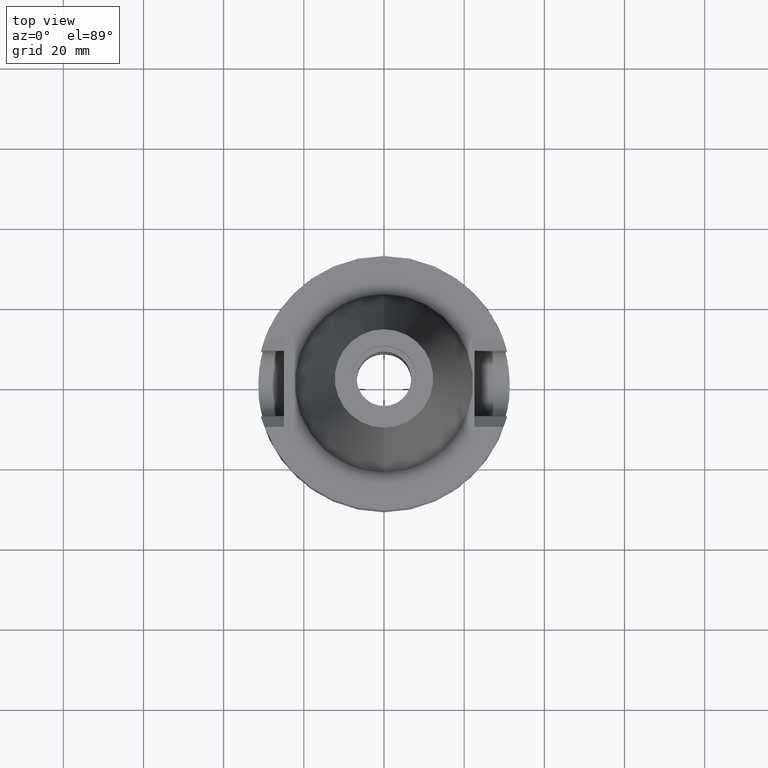
[diagram: clean part render]
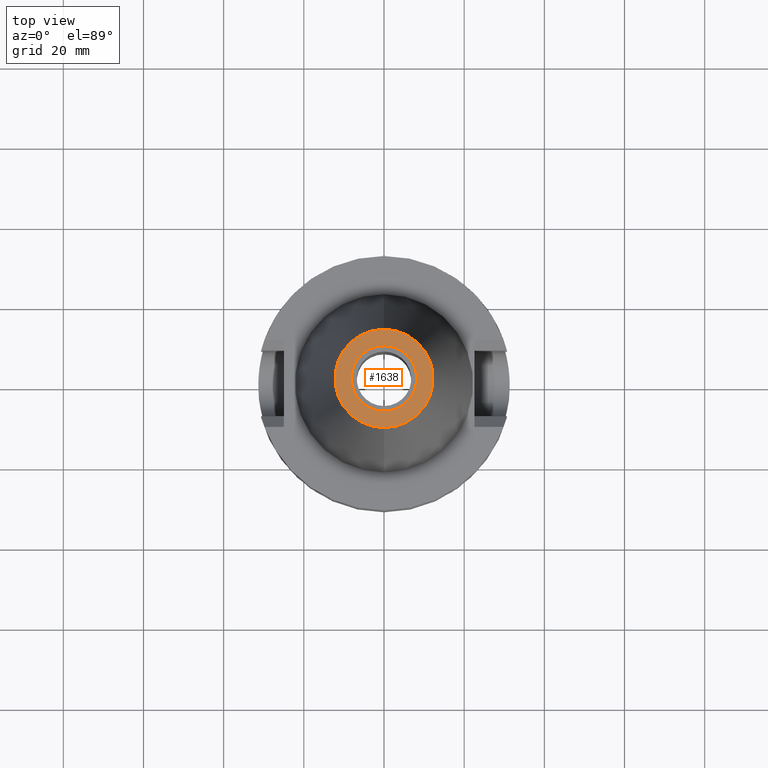
[diagram: same view with one face highlighted and labeled with its STEP entity id]
A machine part, top view. The second image highlights one B-rep face of the part: STEP entity #1638.
In plain terms, the highlighted planar face has unit normal (0, 0, 1).
Its self-contained STEP definition (entity closure, byte-faithful):
#17=CARTESIAN_POINT('',(0.E0,0.E0,6.825E1));
#18=DIRECTION('',(0.E0,0.E0,-1.E0));
#19=DIRECTION('',(0.E0,-1.E0,0.E0));
#20=AXIS2_PLACEMENT_3D('',#17,#18,#19);
#26=CARTESIAN_POINT('',(0.E0,0.E0,6.825E1));
#27=DIRECTION('',(0.E0,0.E0,-1.E0));
#28=DIRECTION('',(0.E0,1.E0,0.E0));
#29=AXIS2_PLACEMENT_3D('',#26,#27,#28);
#34=CARTESIAN_POINT('',(0.E0,0.E0,6.825E1));
#35=DIRECTION('',(0.E0,0.E0,1.E0));
#36=DIRECTION('',(0.E0,-1.E0,0.E0));
#37=AXIS2_PLACEMENT_3D('',#34,#35,#36);
#42=CARTESIAN_POINT('',(0.E0,0.E0,6.825E1));
#43=DIRECTION('',(0.E0,0.E0,1.E0));
#44=DIRECTION('',(0.E0,1.E0,0.E0));
#45=AXIS2_PLACEMENT_3D('',#42,#43,#44);
#1390=CARTESIAN_POINT('',(0.E0,-1.227186888070E1,6.825E1));
#1391=CARTESIAN_POINT('',(0.E0,1.227186888070E1,6.825E1));
#1392=VERTEX_POINT('',#1390);
#1393=VERTEX_POINT('',#1391);
#1394=CARTESIAN_POINT('',(0.E0,-8.16E0,6.825E1));
#1395=CARTESIAN_POINT('',(0.E0,8.16E0,6.825E1));
#1396=VERTEX_POINT('',#1394);
#1397=VERTEX_POINT('',#1395);
#1621=CARTESIAN_POINT('',(0.E0,0.E0,6.825E1));
#1622=DIRECTION('',(0.E0,0.E0,1.E0));
#1623=DIRECTION('',(0.E0,1.E0,0.E0));
#1624=AXIS2_PLACEMENT_3D('',#1621,#1622,#1623);
#1625=PLANE('',#1624);
#1627=ORIENTED_EDGE('',*,*,#1626,.T.);
#1629=ORIENTED_EDGE('',*,*,#1628,.T.);
#1630=EDGE_LOOP('',(#1627,#1629));
#1631=FACE_OUTER_BOUND('',#1630,.F.);
#1633=ORIENTED_EDGE('',*,*,#1632,.T.);
#1635=ORIENTED_EDGE('',*,*,#1634,.T.);
#1636=EDGE_LOOP('',(#1633,#1635));
#1637=FACE_BOUND('',#1636,.F.);
#21=CIRCLE('',#20,1.227186888070E1);
#30=CIRCLE('',#29,1.227186888070E1);
#38=CIRCLE('',#37,8.16E0);
#46=CIRCLE('',#45,8.16E0);
#1626=EDGE_CURVE('',#1392,#1393,#21,.T.);
#1628=EDGE_CURVE('',#1393,#1392,#30,.T.);
#1632=EDGE_CURVE('',#1396,#1397,#38,.T.);
#1634=EDGE_CURVE('',#1397,#1396,#46,.T.);
#1638=ADVANCED_FACE('',(#1631,#1637),#1625,.T.);